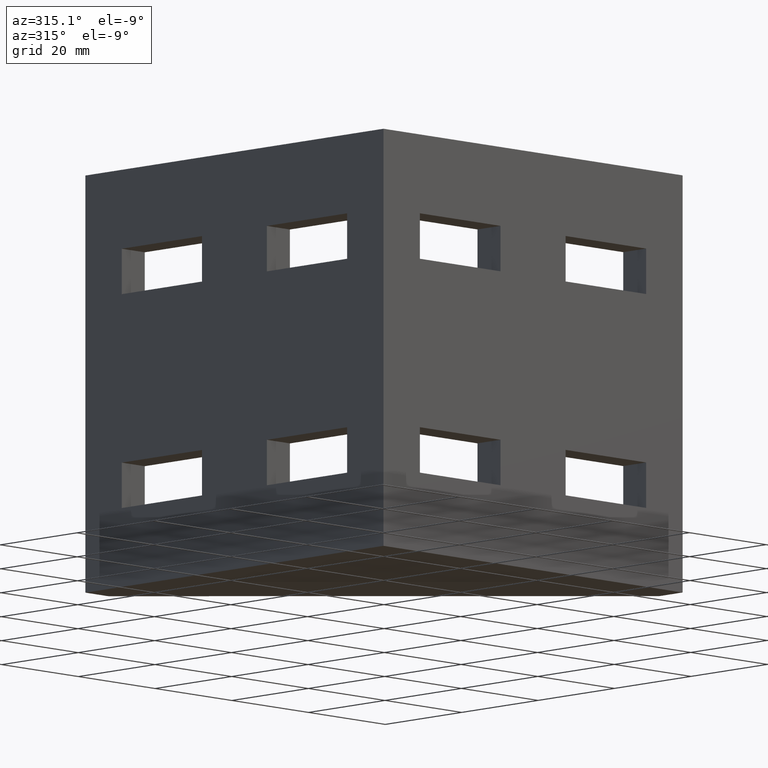
[diagram: clean part render]
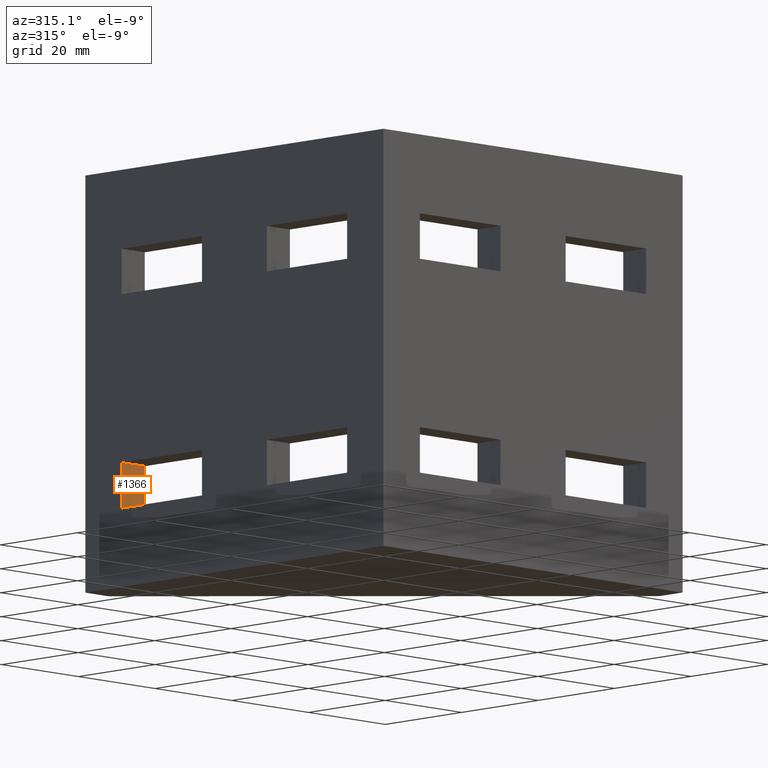
[diagram: same view with one face highlighted and labeled with its STEP entity id]
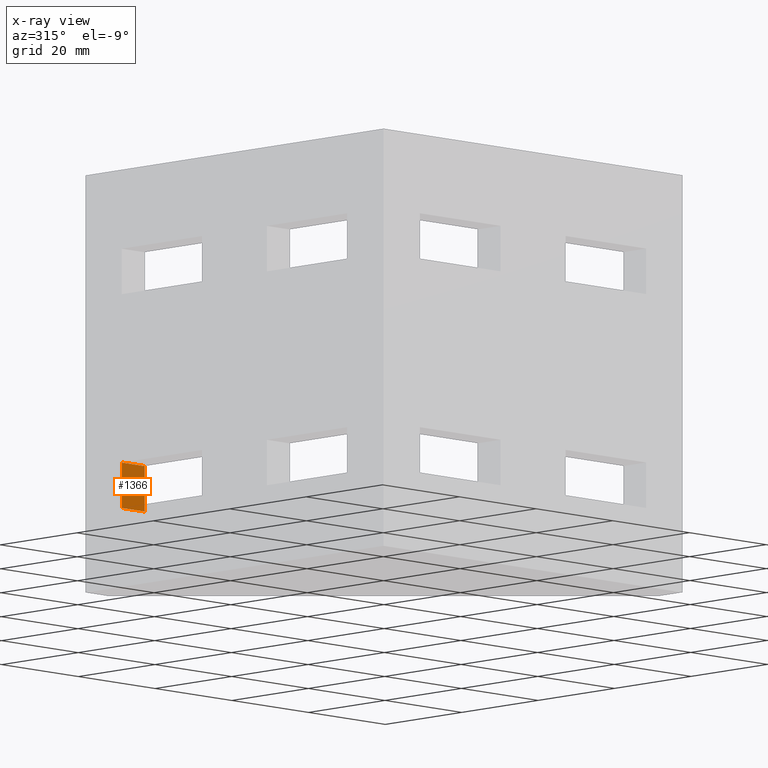
[diagram: x-ray of the same camera — body ghosted, the highlighted face saturated]
A machine part, auxiliary view. The second image highlights one B-rep face of the part: STEP entity #1366.
The next image is the same camera in x-ray: the body ghosted, the highlighted face saturated — about 0% of this face is hidden behind the body in this view.
In plain terms, the highlighted planar face has unit normal (-0, 1, 0).
Its self-contained STEP definition (entity closure, byte-faithful):
#101=FACE_OUTER_BOUND('',#192,.T.);
#192=EDGE_LOOP('',(#1106,#1107,#1108,#1109));
#310=LINE('',#2064,#469);
#336=LINE('',#2118,#495);
#370=LINE('',#2195,#529);
#371=LINE('',#2197,#530);
#469=VECTOR('',#1617,8.49999999999999);
#495=VECTOR('',#1651,8.49999999999999);
#529=VECTOR('',#1739,6.00000000000001);
#530=VECTOR('',#1742,6.);
#649=VERTEX_POINT('',#2057);
#652=VERTEX_POINT('',#2062);
#674=VERTEX_POINT('',#2112);
#676=VERTEX_POINT('',#2116);
#776=EDGE_CURVE('',#652,#649,#310,.T.);
#804=EDGE_CURVE('',#674,#676,#336,.T.);
#844=EDGE_CURVE('',#649,#676,#370,.T.);
#845=EDGE_CURVE('',#652,#674,#371,.T.);
#1106=ORIENTED_EDGE('',*,*,#804,.T.);
#1107=ORIENTED_EDGE('',*,*,#844,.F.);
#1108=ORIENTED_EDGE('',*,*,#776,.F.);
#1109=ORIENTED_EDGE('',*,*,#845,.T.);
#1316=PLANE('',#1453);
#1366=ADVANCED_FACE('',(#101),#1316,.F.);
#1453=AXIS2_PLACEMENT_3D('',#2196,#1740,#1741);
#1617=DIRECTION('',(0.,0.,1.));
#1651=DIRECTION('',(0.,0.,1.));
#1739=DIRECTION('',(1.,1.56606980470128E-16,0.));
#1740=DIRECTION('center_axis',(-1.56606980470128E-16,1.,0.));
#1741=DIRECTION('ref_axis',(-1.,0.,0.));
#1742=DIRECTION('',(1.,1.56606980470128E-16,0.));
#2057=CARTESIAN_POINT('',(-1.04083408558608E-14,68.5,23.25));
#2062=CARTESIAN_POINT('',(0.,68.5,14.75));
#2064=CARTESIAN_POINT('',(-1.04083408558608E-14,68.5,14.75));
#2112=CARTESIAN_POINT('',(6.,68.5,14.75));
#2116=CARTESIAN_POINT('',(6.,68.5,23.25));
#2118=CARTESIAN_POINT('',(6.,68.5,14.75));
#2195=CARTESIAN_POINT('',(-1.04083408558608E-14,68.5,23.25));
#2196=CARTESIAN_POINT('Origin',(-1.04083408558608E-14,68.5,14.75));
#2197=CARTESIAN_POINT('',(-1.04083408558608E-14,68.5,14.75));